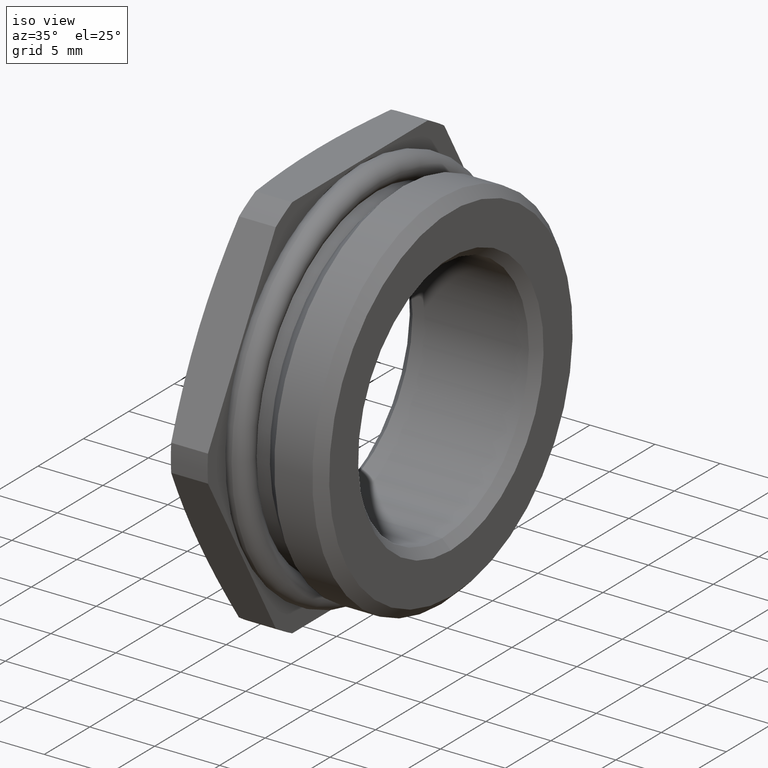
[diagram: clean part render]
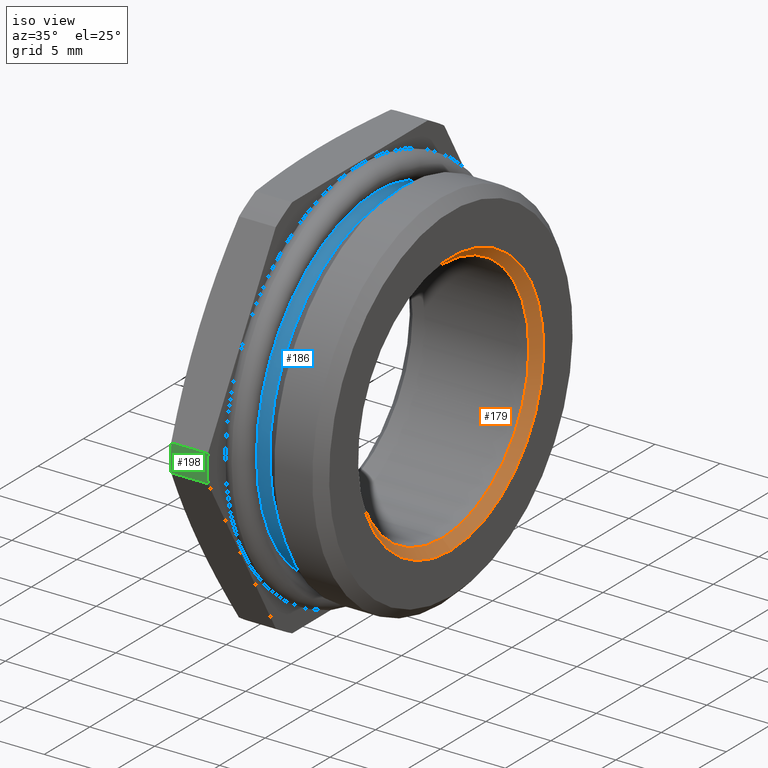
[diagram: same view with three faces highlighted in distinct colors, each labeled with its STEP entity id]
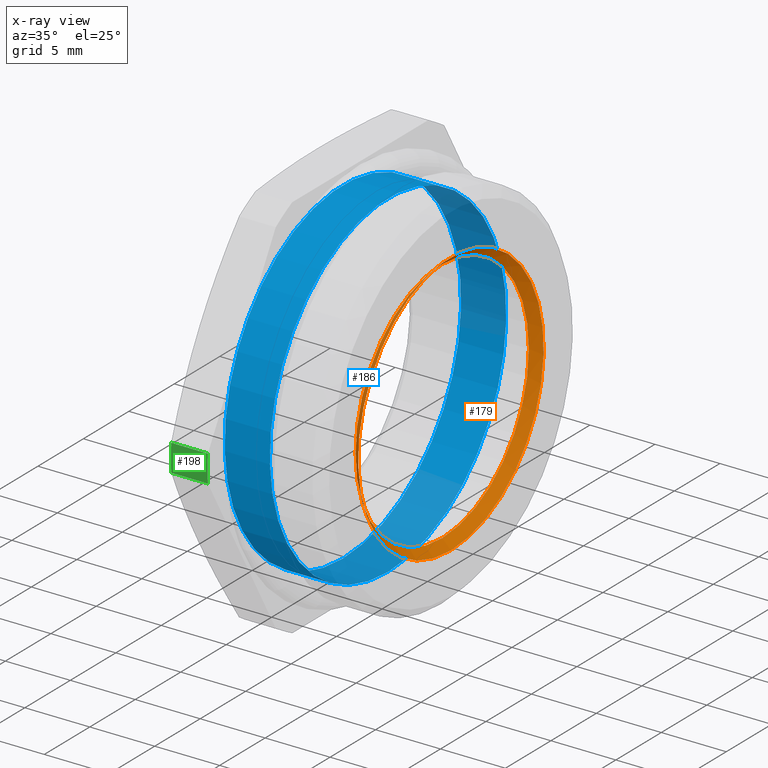
[diagram: x-ray of the same camera — body ghosted, the three highlighted faces saturated]
A machine part, iso view with three faces highlighted in distinct colors.
The next image is the same camera in x-ray (body ghosted, the three faces saturated) — at least one of them is partly hidden behind the body in this view.
Their STEP definitions:

[orange] entity #179 — the highlighted conical surface has half-angle 45 deg.
#179 = ADVANCED_FACE( '', ( #224, #225 ), #226, .F. );
#224 = FACE_OUTER_BOUND( '', #299, .T. );
#225 = FACE_BOUND( '', #300, .T. );
#226 = CONICAL_SURFACE( '', #301, 9.53000000000000, 0.785398163397448 );
#299 = EDGE_LOOP( '', ( #437 ) );
#300 = EDGE_LOOP( '', ( #438 ) );
#301 = AXIS2_PLACEMENT_3D( '', #439, #440, #441 );
#437 = ORIENTED_EDGE( '', *, *, #604, .T. );
#438 = ORIENTED_EDGE( '', *, *, #605, .F. );
#439 = CARTESIAN_POINT( '', ( 9.63000000000000, 0.000000000000000, 0.000000000000000 ) );
#440 = DIRECTION( '', ( 1.00000000000000, -0.000000000000000, -0.000000000000000 ) );
#441 = DIRECTION( '', ( -0.000000000000000, 0.000000000000000, -1.00000000000000 ) );
#604 = EDGE_CURVE( '', #693, #693, #694, .T. );
#605 = EDGE_CURVE( '', #695, #695, #696, .T. );
#693 = VERTEX_POINT( '', #852 );
#694 = CIRCLE( '', #853, 10.2000000000000 );
#695 = VERTEX_POINT( '', #854 );
#696 = CIRCLE( '', #855, 9.53000000000000 );
#852 = CARTESIAN_POINT( '', ( 10.3000000000000, 0.000000000000000, -10.2000000000000 ) );
#853 = AXIS2_PLACEMENT_3D( '', #969, #970, #971 );
#854 = CARTESIAN_POINT( '', ( 9.63000000000000, 0.000000000000000, -9.53000000000000 ) );
#855 = AXIS2_PLACEMENT_3D( '', #972, #973, #974 );
#969 = CARTESIAN_POINT( '', ( 10.3000000000000, 0.000000000000000, 0.000000000000000 ) );
#970 = DIRECTION( '', ( 1.00000000000000, 0.000000000000000, -0.000000000000000 ) );
#971 = DIRECTION( '', ( -0.000000000000000, 0.000000000000000, -1.00000000000000 ) );
#972 = CARTESIAN_POINT( '', ( 9.63000000000000, 0.000000000000000, 0.000000000000000 ) );
#973 = DIRECTION( '', ( 1.00000000000000, 0.000000000000000, -0.000000000000000 ) );
#974 = DIRECTION( '', ( -0.000000000000000, 0.000000000000000, -1.00000000000000 ) );

[blue] entity #186 — the highlighted cylindrical surface (bore or boss wall) has radius 13 mm, axis along (-1, 0, 0).
#186 = ADVANCED_FACE( '', ( #245, #246 ), #247, .T. );
#245 = FACE_OUTER_BOUND( '', #320, .T. );
#246 = FACE_OUTER_BOUND( '', #321, .T. );
#247 = CYLINDRICAL_SURFACE( '', #322, 13.0000000000000 );
#320 = EDGE_LOOP( '', ( #472 ) );
#321 = EDGE_LOOP( '', ( #473 ) );
#322 = AXIS2_PLACEMENT_3D( '', #474, #475, #476 );
#472 = ORIENTED_EDGE( '', *, *, #610, .F. );
#473 = ORIENTED_EDGE( '', *, *, #611, .T. );
#474 = CARTESIAN_POINT( '', ( 10.3000000000000, 0.000000000000000, 0.000000000000000 ) );
#475 = DIRECTION( '', ( -1.00000000000000, -0.000000000000000, 0.000000000000000 ) );
#476 = DIRECTION( '', ( -0.000000000000000, 0.000000000000000, -1.00000000000000 ) );
#610 = EDGE_CURVE( '', #705, #705, #706, .T. );
#611 = EDGE_CURVE( '', #707, #707, #708, .T. );
#705 = VERTEX_POINT( '', #864 );
#706 = CIRCLE( '', #865, 13.0000000000000 );
#707 = VERTEX_POINT( '', #866 );
#708 = CIRCLE( '', #867, 13.0000000000000 );
#864 = CARTESIAN_POINT( '', ( 5.46000000000000, 0.000000000000000, -13.0000000000000 ) );
#865 = AXIS2_PLACEMENT_3D( '', #987, #988, #989 );
#866 = CARTESIAN_POINT( '', ( 1.98304473782995, 0.000000000000000, -13.0000000000000 ) );
#867 = AXIS2_PLACEMENT_3D( '', #990, #991, #992 );
#987 = CARTESIAN_POINT( '', ( 5.46000000000000, 0.000000000000000, 0.000000000000000 ) );
#988 = DIRECTION( '', ( 1.00000000000000, 0.000000000000000, -0.000000000000000 ) );
#989 = DIRECTION( '', ( -0.000000000000000, 0.000000000000000, -1.00000000000000 ) );
#990 = CARTESIAN_POINT( '', ( 1.98304473782995, 0.000000000000000, 0.000000000000000 ) );
#991 = DIRECTION( '', ( 1.00000000000000, 0.000000000000000, -0.000000000000000 ) );
#992 = DIRECTION( '', ( -0.000000000000000, 0.000000000000000, -1.00000000000000 ) );

[green] entity #198 — the highlighted cylindrical surface (partial cylindrical patch) has radius 16.75 mm, axis along (-1, 0, 0).
#198 = ADVANCED_FACE( '', ( #272 ), #273, .T. );
#272 = FACE_OUTER_BOUND( '', #347, .T. );
#273 = CYLINDRICAL_SURFACE( '', #348, 16.7500000000000 );
#347 = EDGE_LOOP( '', ( #552, #553, #554, #555 ) );
#348 = AXIS2_PLACEMENT_3D( '', #556, #557, #558 );
#552 = ORIENTED_EDGE( '', *, *, #618, .T. );
#553 = ORIENTED_EDGE( '', *, *, #621, .T. );
#554 = ORIENTED_EDGE( '', *, *, #585, .F. );
#555 = ORIENTED_EDGE( '', *, *, #620, .T. );
#556 = CARTESIAN_POINT( '', ( 10.3000000000000, 0.000000000000000, 0.000000000000000 ) );
#557 = DIRECTION( '', ( -1.00000000000000, -0.000000000000000, 0.000000000000000 ) );
#558 = DIRECTION( '', ( -0.000000000000000, 0.000000000000000, -1.00000000000000 ) );
#585 = EDGE_CURVE( '', #662, #664, #665, .T. );
#618 = EDGE_CURVE( '', #718, #716, #719, .T. );
#620 = EDGE_CURVE( '', #662, #718, #721, .F. );
#621 = EDGE_CURVE( '', #716, #664, #722, .T. );
#662 = VERTEX_POINT( '', #786 );
#664 = VERTEX_POINT( '', #789 );
#665 = CIRCLE( '', #790, 16.7500000000000 );
#716 = VERTEX_POINT( '', #882 );
#718 = VERTEX_POINT( '', #889 );
#719 = CIRCLE( '', #890, 16.7500000000000 );
#721 = LINE( '', #897, #898 );
#722 = LINE( '', #899, #900 );
#786 = CARTESIAN_POINT( '', ( 3.30000000000000, -16.7173939357355, 1.04462433316234 ) );
#789 = CARTESIAN_POINT( '', ( 3.30000000000000, -16.7173939357355, -1.04462433316234 ) );
#790 = AXIS2_PLACEMENT_3D( '', #945, #946, #947 );
#882 = CARTESIAN_POINT( '', ( 0.468911086754465, -16.7173939357355, -1.04462433316231 ) );
#889 = CARTESIAN_POINT( '', ( 0.468911086754465, -16.7173939357355, 1.04462433316231 ) );
#890 = AXIS2_PLACEMENT_3D( '', #1001, #1002, #1003 );
#897 = CARTESIAN_POINT( '', ( 10.3000000000000, -16.7173939357355, 1.04462433316231 ) );
#898 = VECTOR( '', #1004, 1000.00000000000 );
#899 = CARTESIAN_POINT( '', ( 10.3000000000000, -16.7173939357355, -1.04462433316231 ) );
#900 = VECTOR( '', #1005, 1000.00000000000 );
#945 = CARTESIAN_POINT( '', ( 3.30000000000000, 0.000000000000000, 0.000000000000000 ) );
#946 = DIRECTION( '', ( 1.00000000000000, 0.000000000000000, -0.000000000000000 ) );
#947 = DIRECTION( '', ( -0.000000000000000, 0.000000000000000, -1.00000000000000 ) );
#1001 = CARTESIAN_POINT( '', ( 0.468911086754465, 0.000000000000000, 0.000000000000000 ) );
#1002 = DIRECTION( '', ( 1.00000000000000, 0.000000000000000, -0.000000000000000 ) );
#1003 = DIRECTION( '', ( -0.000000000000000, 0.000000000000000, -1.00000000000000 ) );
#1004 = DIRECTION( '', ( 1.00000000000000, -0.000000000000000, -0.000000000000000 ) );
#1005 = DIRECTION( '', ( 1.00000000000000, -0.000000000000000, -0.000000000000000 ) );